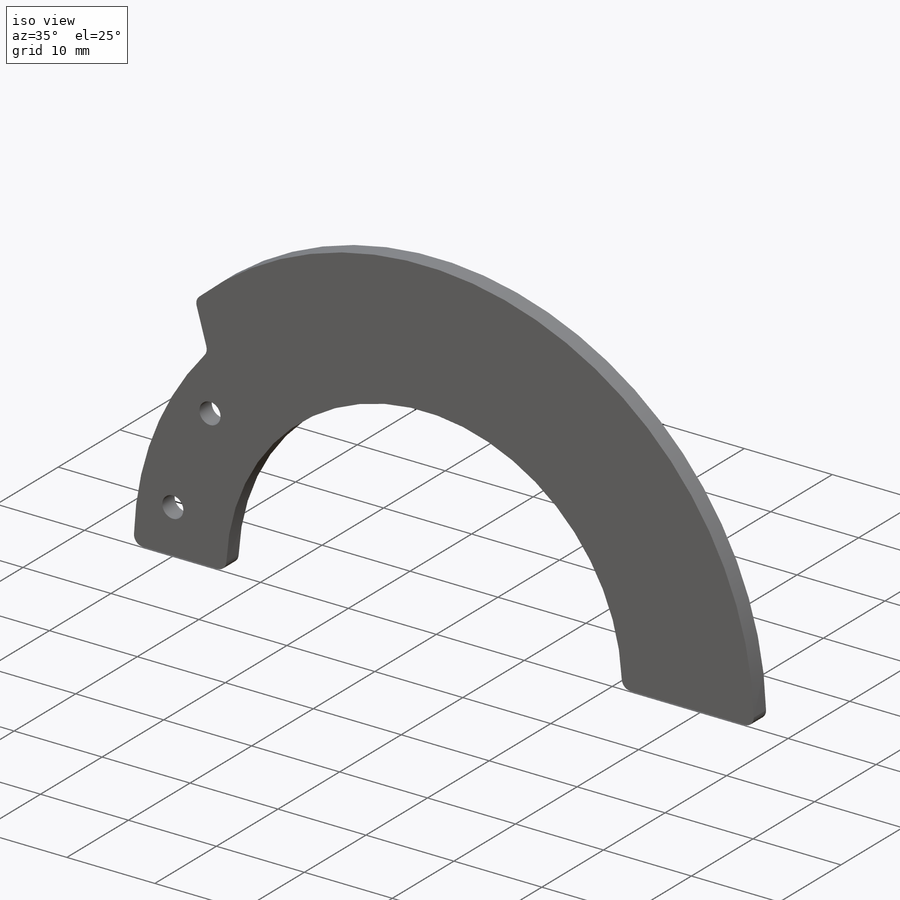
[diagram: iso view]
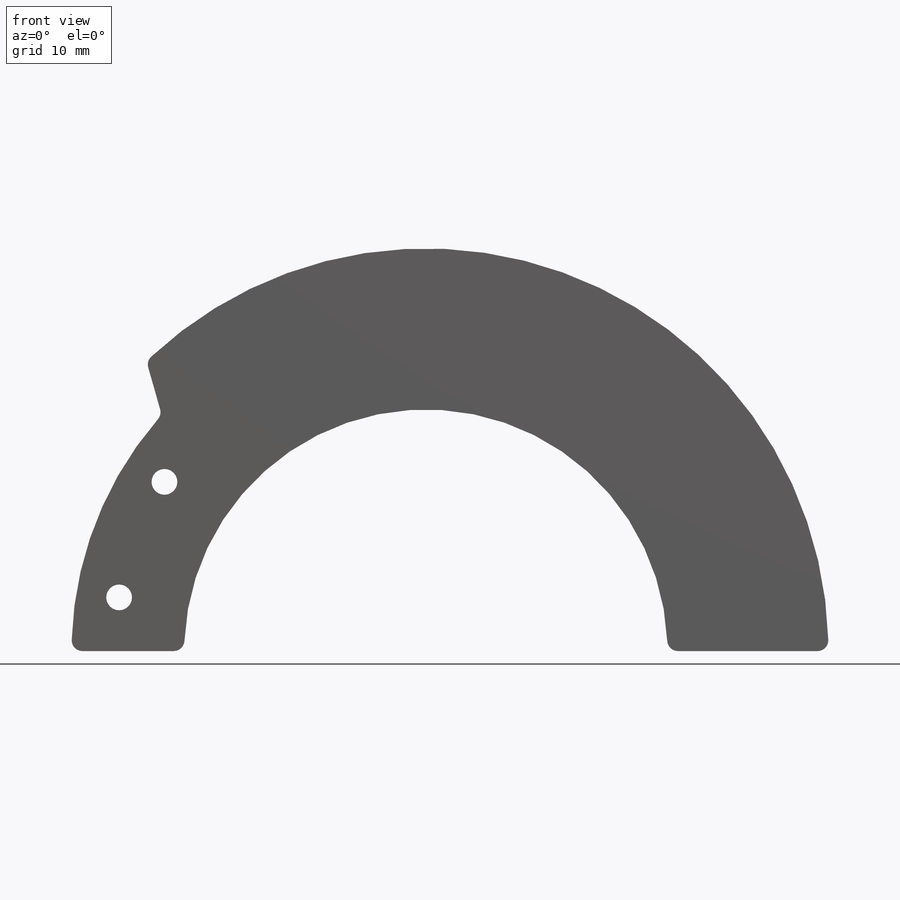
[diagram: front view]
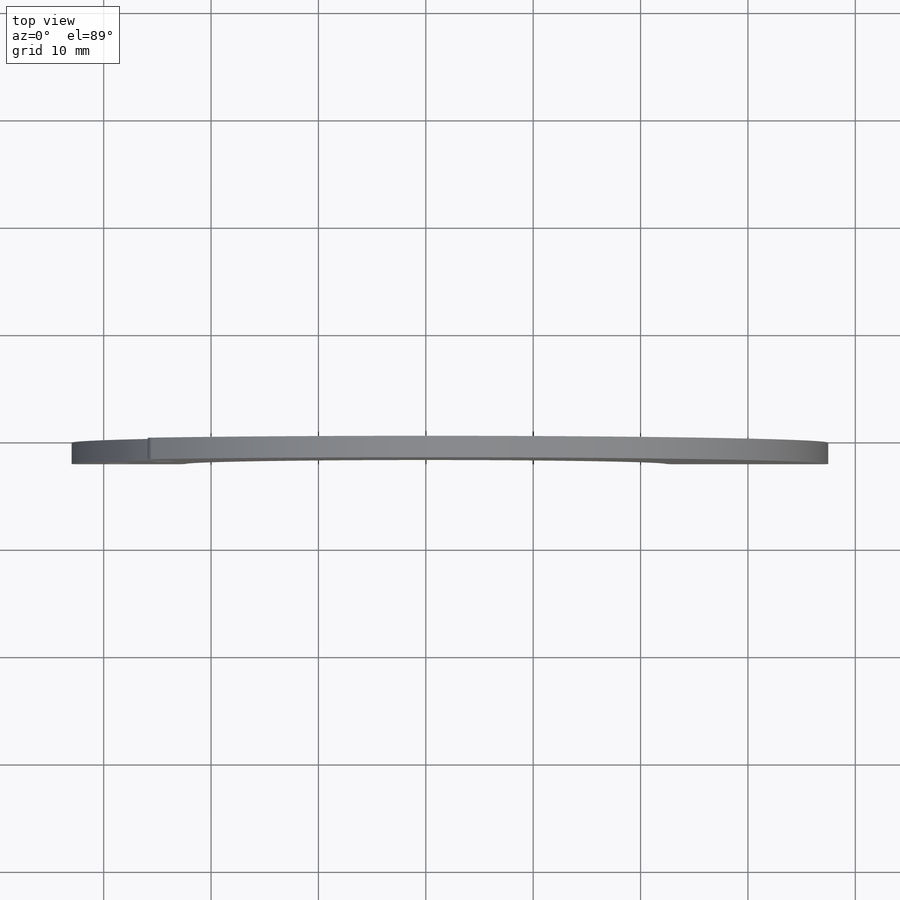
[diagram: top view]
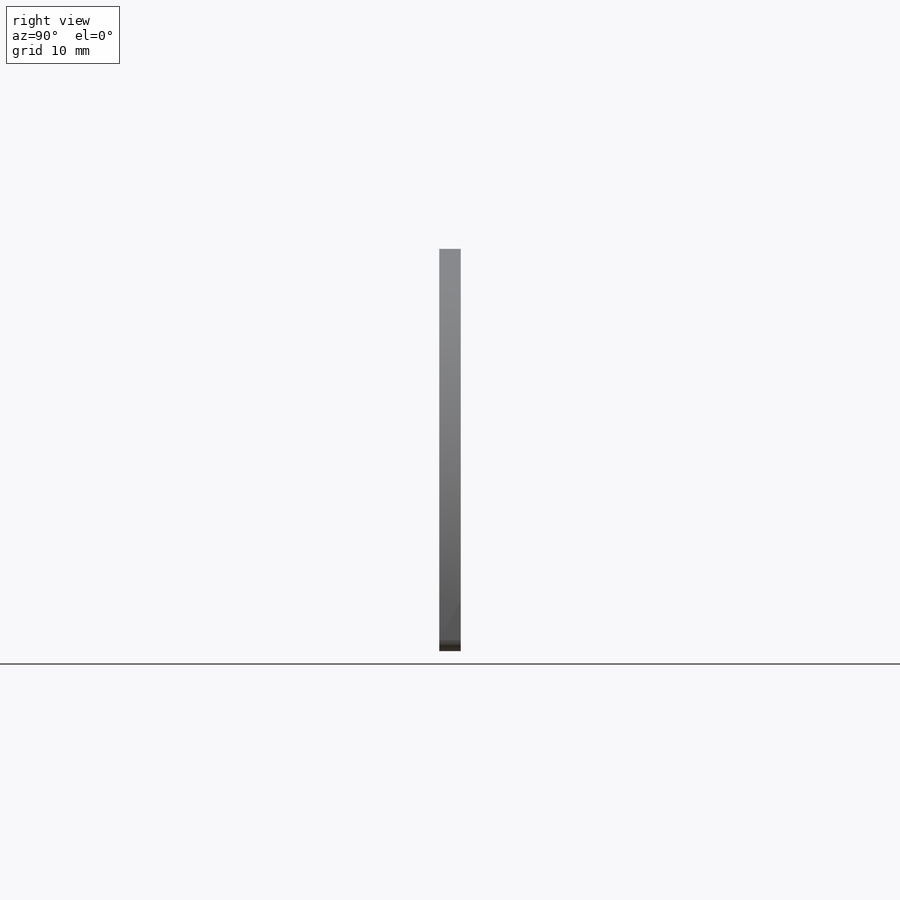
[diagram: right view]
SOLIDWORKS PART (.sldprt)
format: sldprt  version: not decoded by parser v0  size: 209,408 bytes
history: native  units: mm
features: sketch x4, plane x3, material x1, extrude x1, hole x1, cut_extrude x1, fillet x1 (+9 scaffold rows collapsed)
feature tree (21):
  scaffold x9  (default folders/planes/origin — collapsed)
  material  "Thornel Mat VMA"
  plane  "Plan de face"
  plane  "Plan de dessus"
  plane  "Plan de droite"
  sketch  "Esquisse1"  dims[D1=75.0mm D2=56.4mm D3=45.0mm]
  extrude  "Boss.-Extru.1"  Depth=2mm
  hole  "Dégagement M21"  Diameter=2.4mm Depth=10mm
  sketch  "Esquisse6"  dims[c1.D2=29.0mm c1.D1=29.0mm c2.D2=~29.000002mm c2.D1=9.96mm c2.D3=5.0mm c3.D1=11.56mm c3.D3=5.0mm]
  sketch  "Esquisse4"  dims[hole-wizard template sketch: 47 standard entries collapsed; hole parameters kept: c15.Profondeur du perçage=10.0mm c15.D3=~14.816244mm c15.Angle de pointe=118.0deg]
  sketch  "Esquisse7"  dims[D1=33.0mm D2=5.0mm D3=22.0mm]
  cut_extrude  "Enlèv. mat.-Extru.1"  [1 undecoded]
  fillet  "Congé1"  Radius=1mm
decode coverage: 7 of 8 modeling features carry decoded parameters
note: ~ marks probable driven/reference dimensions
note: 1 parameter value undecoded
note: suppression state not decoded; provenance and decode notes live in map.json
